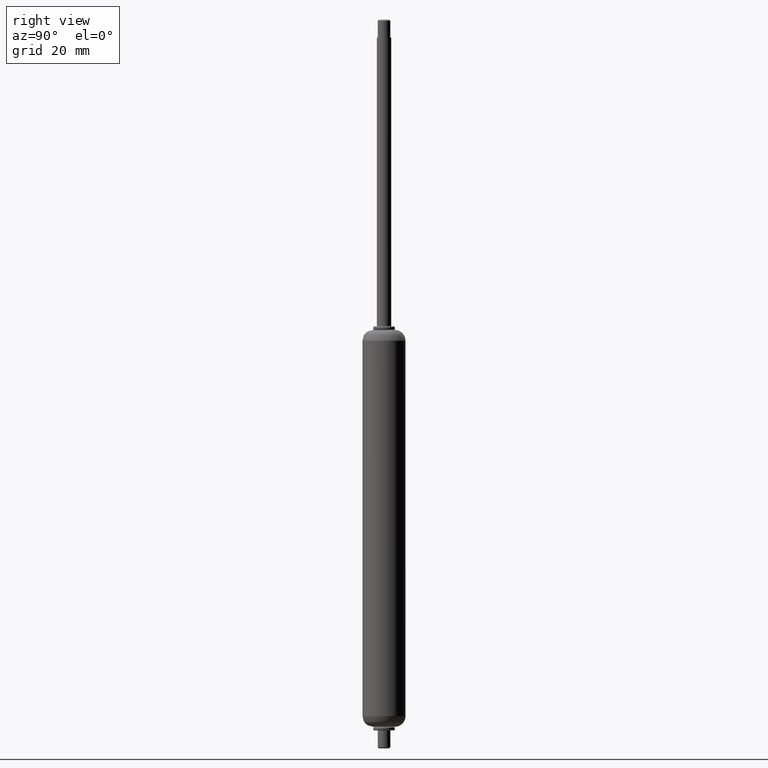
[diagram: clean part render]
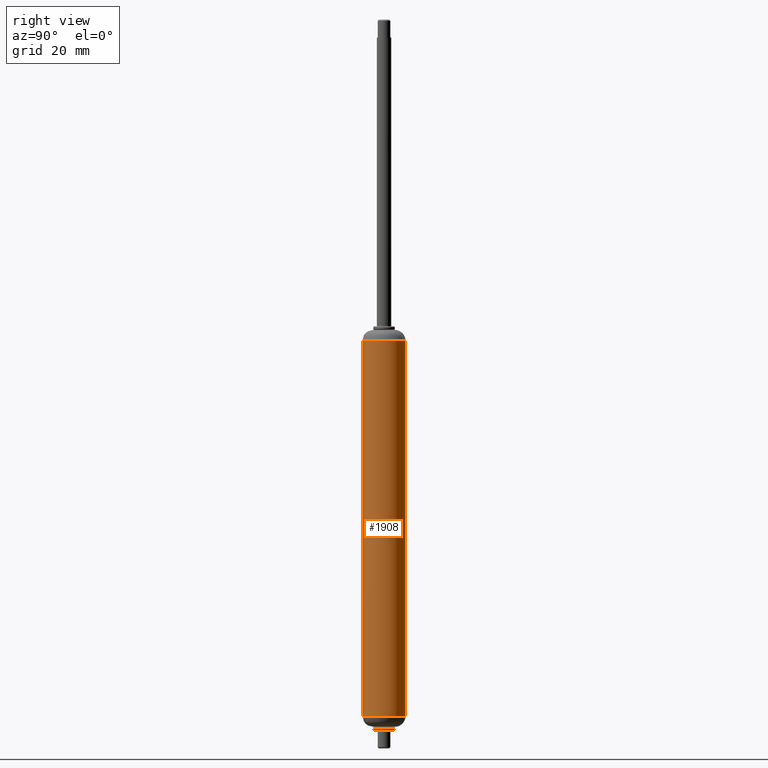
[diagram: same view with one face highlighted and labeled with its STEP entity id]
A machine part, right view. The second image highlights one B-rep face of the part: STEP entity #1908.
In plain terms, the highlighted face is a freeform B-spline surface patch.
Its self-contained STEP definition (entity closure, byte-faithful):
#1742=CARTESIAN_POINT('',(-5.616861472659112,-2.109707846349194,-0.399999899999949));
#1743=CARTESIAN_POINT('',(-5.933784116190037,-1.265936710292305,-0.399999899999950));
#1744=CARTESIAN_POINT('',(-5.988808790530326,-0.366291237209098,-0.399999899999950));
#1745=CARTESIAN_POINT('',(-6.355100027739424,5.622517553321434,-0.399999899999950));
#1746=CARTESIAN_POINT('',(-0.366291237208892,5.988808790530532,-0.399999899999950));
#1747=CARTESIAN_POINT('',(5.622517553321640,6.355100027739630,-0.399999899999950));
#1748=CARTESIAN_POINT('',(5.988808790530738,0.366291237209098,-0.399999899999950));
#1749=CARTESIAN_POINT('',(6.355100027739836,-5.622517553321434,-0.399999899999950));
#1750=CARTESIAN_POINT('',(0.366291237209304,-5.988808790530532,-0.399999899999950));
#1751=CARTESIAN_POINT('',(-5.616861472659112,-2.109707846349194,-109.665004102501970));
#1752=CARTESIAN_POINT('',(-5.933784116190037,-1.265936710292305,-109.665004102501950));
#1753=CARTESIAN_POINT('',(-5.988808790530326,-0.366291237209098,-109.665004102502000));
#1754=CARTESIAN_POINT('',(-6.355100027739424,5.622517553321434,-109.665004102501950));
#1755=CARTESIAN_POINT('',(-0.366291237208892,5.988808790530532,-109.665004102502000));
#1756=CARTESIAN_POINT('',(5.622517553321640,6.355100027739630,-109.665004102501950));
#1757=CARTESIAN_POINT('',(5.988808790530738,0.366291237209098,-109.665004102502000));
#1758=CARTESIAN_POINT('',(6.355100027739836,-5.622517553321434,-109.665004102501950));
#1759=CARTESIAN_POINT('',(0.366291237209304,-5.988808790530532,-109.665004102502000));
#1767=(BOUNDED_SURFACE()B_SPLINE_SURFACE(2,1,((#1742,#1751),(#1743,#1752),(#1744,#1753),(#1745,#1754),(#1746,#1755),(#1747,#1756),(#1748,#1757),(#1749,#1758),(#1750,#1759)),.UNSPECIFIED.,.F.,.F.,.U.)B_SPLINE_SURFACE_WITH_KNOTS((3,2,2,2,3),(2,2),(0.0,1.988225099390634,11.929350596343800,21.870476093296968,31.811601590250142),(0.0,109.265004202502000),.UNSPECIFIED.)GEOMETRIC_REPRESENTATION_ITEM()RATIONAL_B_SPLINE_SURFACE(((0.906274169979695,0.906274169979695),(0.941421356237309,0.941421356237309),(1.0,1.0),(0.707106781186548,0.707106781186548),(1.0,1.0),(0.707106781186548,0.707106781186548),(1.0,1.0),(0.707106781186548,0.707106781186548),(1.0,1.0)))REPRESENTATION_ITEM('')SURFACE());
#1768=CARTESIAN_POINT('',(-5.616861472639842,-2.109707846400514,-2.999999999999996));
#1769=VERTEX_POINT('',#1768);
#1770=CARTESIAN_POINT('',(-5.999999999999130,0.0,-3.0));
#1771=VERTEX_POINT('',#1770);
#1772=CARTESIAN_POINT('',(-5.616861472639842,-2.109707846400514,-2.999999999999996));
#1773=CARTESIAN_POINT('',(-5.999999999999135,-1.089644316457069,-3.000000000000000));
#1774=CARTESIAN_POINT('',(-5.999999999999134,0.0,-3.0));
#1782=(BOUNDED_CURVE()B_SPLINE_CURVE(2,(#1772,#1773,#1774),.UNSPECIFIED.,.F.,.U.)B_SPLINE_CURVE_WITH_KNOTS((3,3),(0.940284170896023,1.0),.UNSPECIFIED.)CURVE()GEOMETRIC_REPRESENTATION_ITEM()RATIONAL_B_SPLINE_CURVE((0.893499554632234,0.930038554398489,1.0))REPRESENTATION_ITEM(''));
#1783=EDGE_CURVE('',#1769,#1771,#1782,.T.);
#1784=ORIENTED_EDGE('',*,*,#1783,.T.);
#1785=CARTESIAN_POINT('',(-0.692785376447067,5.959869832653462,-3.000000000000625));
#1786=VERTEX_POINT('',#1785);
#1787=CARTESIAN_POINT('',(-5.999999999999134,0.0,-3.0));
#1788=CARTESIAN_POINT('',(-5.999999999999133,5.342950204085793,-3.0));
#1789=CARTESIAN_POINT('',(-0.692785376447067,5.959869832653462,-3.000000000000625));
#1797=(BOUNDED_CURVE()B_SPLINE_CURVE(2,(#1787,#1788,#1789),.UNSPECIFIED.,.F.,.U.)B_SPLINE_CURVE_WITH_KNOTS((3,3),(0.0,0.229999999972474),.UNSPECIFIED.)CURVE()GEOMETRIC_REPRESENTATION_ITEM()RATIONAL_B_SPLINE_CURVE((1.0,0.730538238723872,0.956886118136483))REPRESENTATION_ITEM(''));
#1798=EDGE_CURVE('',#1771,#1786,#1797,.T.);
#1799=ORIENTED_EDGE('',*,*,#1798,.T.);
#1800=CARTESIAN_POINT('',(5.999999999999546,0.0,-3.0));
#1801=VERTEX_POINT('',#1800);
#1802=CARTESIAN_POINT('',(-0.692785376447067,5.959869832653462,-3.000000000000625));
#1803=CARTESIAN_POINT('',(-0.347554975076828,5.999999999999341,-3.000000000000000));
#1804=CARTESIAN_POINT('',(2.060574E-013,5.999999999999340,-3.0));
#1805=CARTESIAN_POINT('',(5.999999999999545,5.999999999999341,-3.0));
#1806=CARTESIAN_POINT('',(5.999999999999546,0.0,-3.0));
#1814=(BOUNDED_CURVE()B_SPLINE_CURVE(2,(#1802,#1803,#1804,#1805,#1806),.UNSPECIFIED.,.F.,.U.)B_SPLINE_CURVE_WITH_KNOTS((3,2,3),(0.229999999972474,0.250000000000000,0.500000000000000),.UNSPECIFIED.)CURVE()GEOMETRIC_REPRESENTATION_ITEM()RATIONAL_B_SPLINE_CURVE((0.956886118136483,0.976568542462676,1.0,0.707106781186548,1.0))REPRESENTATION_ITEM(''));
#1815=EDGE_CURVE('',#1786,#1801,#1814,.T.);
#1816=ORIENTED_EDGE('',*,*,#1815,.T.);
#1817=CARTESIAN_POINT('',(0.366289480670478,-5.988808897964537,-3.000000000000002));
#1818=VERTEX_POINT('',#1817);
#1819=CARTESIAN_POINT('',(5.999999999999546,0.0,-3.0));
#1820=CARTESIAN_POINT('',(5.999999999999547,-5.644238060001837,-3.000000000000000));
#1821=CARTESIAN_POINT('',(0.366289480670478,-5.988808897964537,-3.000000000000003));
#1829=(BOUNDED_CURVE()B_SPLINE_CURVE(2,(#1819,#1820,#1821),.UNSPECIFIED.,.F.,.U.)B_SPLINE_CURVE_WITH_KNOTS((3,3),(0.500000000000000,0.739333012850555),.UNSPECIFIED.)CURVE()GEOMETRIC_REPRESENTATION_ITEM()RATIONAL_B_SPLINE_CURVE((1.0,0.719603933991519,0.976072150137060))REPRESENTATION_ITEM(''));
#1830=EDGE_CURVE('',#1801,#1818,#1829,.T.);
#1831=ORIENTED_EDGE('',*,*,#1830,.T.);
#1832=CARTESIAN_POINT('',(0.366289501753368,-5.988808896675055,-107.000004000000000));
#1833=VERTEX_POINT('',#1832);
#1834=CARTESIAN_POINT('',(0.366289480670478,-5.988808897964537,-3.000000000000002));
#1835=CARTESIAN_POINT('',(0.366289501753368,-5.988808896675055,-107.000004000000000));
#1836=QUASI_UNIFORM_CURVE('',1,(#1834,#1835),.UNSPECIFIED.,.F.,.U.);
#1837=EDGE_CURVE('',#1818,#1833,#1836,.T.);
#1838=ORIENTED_EDGE('',*,*,#1837,.T.);
#1839=CARTESIAN_POINT('',(5.999999999999527,0.0,-107.000004000000000));
#1840=VERTEX_POINT('',#1839);
#1841=CARTESIAN_POINT('',(5.999999999999527,0.0,-107.000004000000000));
#1842=CARTESIAN_POINT('',(5.999999999999526,-5.644238040094818,-107.000003999999990));
#1843=CARTESIAN_POINT('',(0.366289501753385,-5.988808896675302,-107.000004000000020));
#1851=(BOUNDED_CURVE()B_SPLINE_CURVE(2,(#1841,#1842,#1843),.UNSPECIFIED.,.F.,.U.)B_SPLINE_CURVE_WITH_KNOTS((3,3),(0.500000000000000,0.739333012243124),.UNSPECIFIED.)CURVE()GEOMETRIC_REPRESENTATION_ITEM()RATIONAL_B_SPLINE_CURVE((1.0,0.719603934703168,0.976072148835220))REPRESENTATION_ITEM(''));
#1852=EDGE_CURVE('',#1840,#1833,#1851,.T.);
#1853=ORIENTED_EDGE('',*,*,#1852,.F.);
#1854=CARTESIAN_POINT('',(-0.692785376447067,5.959869832653451,-107.000004000001890));
#1855=VERTEX_POINT('',#1854);
#1856=CARTESIAN_POINT('',(-0.692785376447067,5.959869832653451,-107.000004000001880));
#1857=CARTESIAN_POINT('',(-0.347554975076828,5.999999999999321,-107.000003999999950));
#1858=CARTESIAN_POINT('',(2.060574E-013,5.999999999999321,-107.000004000000000));
#1859=CARTESIAN_POINT('',(5.999999999999526,5.999999999999320,-107.000004000000000));
#1860=CARTESIAN_POINT('',(5.999999999999527,0.0,-107.000004000000000));
#1868=(BOUNDED_CURVE()B_SPLINE_CURVE(2,(#1856,#1857,#1858,#1859,#1860),.UNSPECIFIED.,.F.,.U.)B_SPLINE_CURVE_WITH_KNOTS((3,2,3),(0.229999999972474,0.250000000000000,0.500000000000000),.UNSPECIFIED.)CURVE()GEOMETRIC_REPRESENTATION_ITEM()RATIONAL_B_SPLINE_CURVE((0.956886118136483,0.976568542462675,1.0,0.707106781186548,1.0))REPRESENTATION_ITEM(''));
#1869=EDGE_CURVE('',#1855,#1840,#1868,.T.);
#1870=ORIENTED_EDGE('',*,*,#1869,.F.);
#1871=CARTESIAN_POINT('',(-5.999999999999116,0.0,-107.000004000000000));
#1872=VERTEX_POINT('',#1871);
#1873=CARTESIAN_POINT('',(-5.999999999999114,0.0,-107.000004000000000));
#1874=CARTESIAN_POINT('',(-5.999999999999113,5.342950204085775,-107.000003999999990));
#1875=CARTESIAN_POINT('',(-0.692785376447067,5.959869832653451,-107.000004000001950));
#1883=(BOUNDED_CURVE()B_SPLINE_CURVE(2,(#1873,#1874,#1875),.UNSPECIFIED.,.F.,.U.)B_SPLINE_CURVE_WITH_KNOTS((3,3),(0.0,0.229999999972474),.UNSPECIFIED.)CURVE()GEOMETRIC_REPRESENTATION_ITEM()RATIONAL_B_SPLINE_CURVE((1.0,0.730538238723872,0.956886118136483))REPRESENTATION_ITEM(''));
#1884=EDGE_CURVE('',#1872,#1855,#1883,.T.);
#1885=ORIENTED_EDGE('',*,*,#1884,.F.);
#1886=CARTESIAN_POINT('',(-5.616861472639832,-2.109707846400509,-107.000004000000000));
#1887=VERTEX_POINT('',#1886);
#1888=CARTESIAN_POINT('',(-5.616861472639832,-2.109707846400509,-107.000004000000000));
#1889=CARTESIAN_POINT('',(-5.999999999999113,-1.089644316457064,-107.000003999999990));
#1890=CARTESIAN_POINT('',(-5.999999999999114,0.0,-107.000004000000000));
#1898=(BOUNDED_CURVE()B_SPLINE_CURVE(2,(#1888,#1889,#1890),.UNSPECIFIED.,.F.,.U.)B_SPLINE_CURVE_WITH_KNOTS((3,3),(0.940284170896023,1.0),.UNSPECIFIED.)CURVE()GEOMETRIC_REPRESENTATION_ITEM()RATIONAL_B_SPLINE_CURVE((0.893499554632234,0.930038554398489,1.0))REPRESENTATION_ITEM(''));
#1899=EDGE_CURVE('',#1887,#1872,#1898,.T.);
#1900=ORIENTED_EDGE('',*,*,#1899,.F.);
#1901=CARTESIAN_POINT('',(-5.616861472639842,-2.109707846400514,-2.999999999999996));
#1902=CARTESIAN_POINT('',(-5.616861472639832,-2.109707846400509,-107.000004000000000));
#1903=QUASI_UNIFORM_CURVE('',1,(#1901,#1902),.UNSPECIFIED.,.F.,.U.);
#1904=EDGE_CURVE('',#1769,#1887,#1903,.T.);
#1905=ORIENTED_EDGE('',*,*,#1904,.F.);
#1906=EDGE_LOOP('',(#1784,#1799,#1816,#1831,#1838,#1853,#1870,#1885,#1900,#1905));
#1907=FACE_OUTER_BOUND('',#1906,.T.);
#1908=ADVANCED_FACE('',(#1907),#1767,.T.);